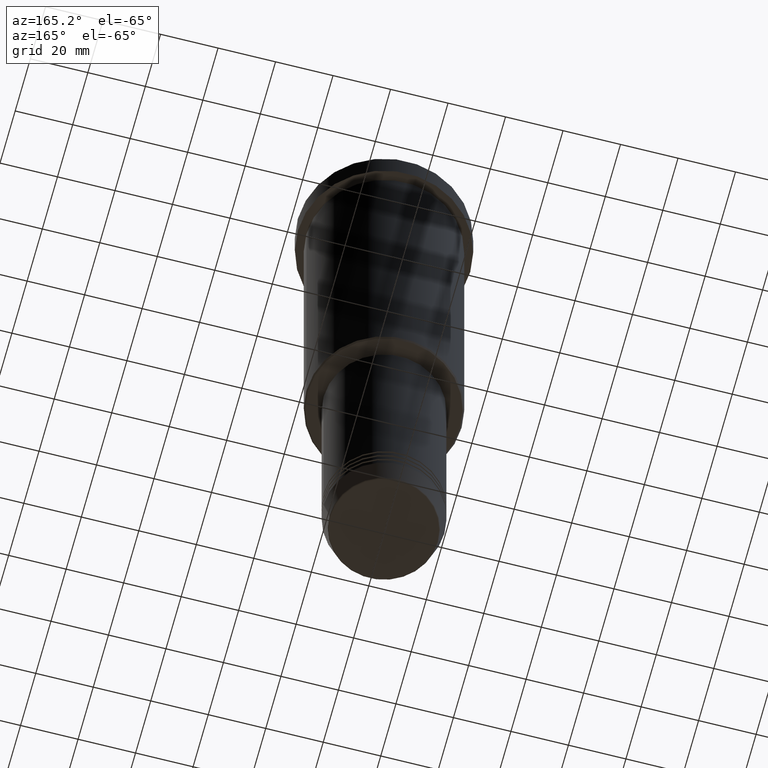
[diagram: clean part render]
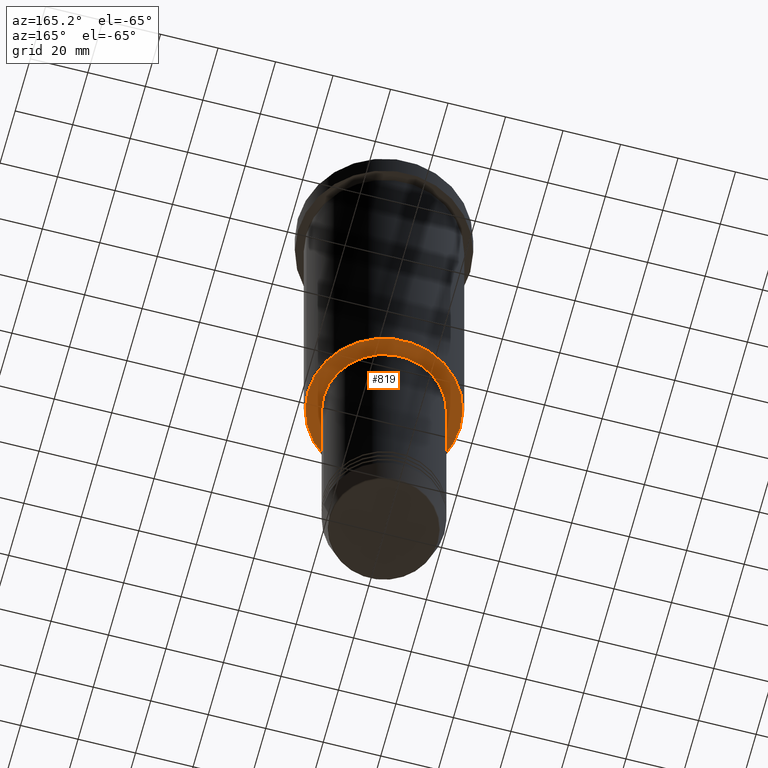
[diagram: same view with one face highlighted and labeled with its STEP entity id]
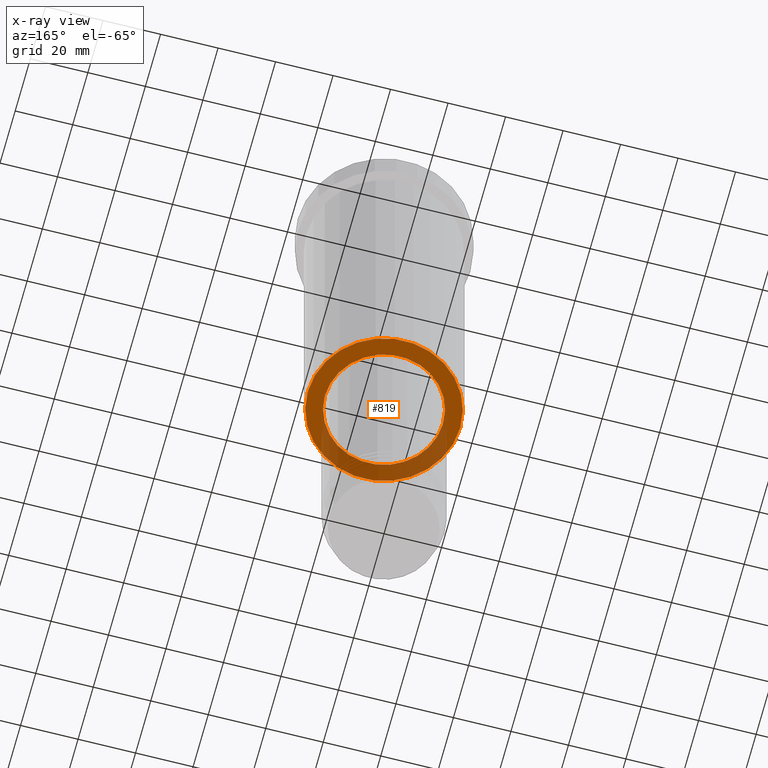
[diagram: x-ray of the same camera — body ghosted, the highlighted face saturated]
A machine part, auxiliary view. The second image highlights one B-rep face of the part: STEP entity #819.
The next image is the same camera in x-ray: the body ghosted, the highlighted face saturated — about 35% of this face is hidden behind the body in this view.
In plain terms, the highlighted planar face has unit normal (0, 0, -1).
Its self-contained STEP definition (entity closure, byte-faithful):
#2 = DIRECTION ( 'NONE',  ( 0.000000000000000000, 0.000000000000000000, -1.000000000000000000 ) ) ;
#9 = CARTESIAN_POINT ( 'NONE',  ( 0.000000000000000000, 0.000000000000000000, -136.0000000000000000 ) ) ;
#47 = VERTEX_POINT ( 'NONE', #62 ) ;
#62 = CARTESIAN_POINT ( 'NONE',  ( 20.50000000000000000, 0.000000000000000000, -136.0000000000000000 ) ) ;
#69 = DIRECTION ( 'NONE',  ( -0.000000000000000000, -0.000000000000000000, 1.000000000000000000 ) ) ;
#123 = EDGE_CURVE ( 'NONE', #47, #1094, #803, .T. ) ;
#173 = CARTESIAN_POINT ( 'NONE',  ( -20.50000000000000000, 2.510525938252074481E-15, -136.0000000000000000 ) ) ;
#178 = DIRECTION ( 'NONE',  ( -0.000000000000000000, -0.000000000000000000, 1.000000000000000000 ) ) ;
#188 = DIRECTION ( 'NONE',  ( 0.000000000000000000, 0.000000000000000000, -1.000000000000000000 ) ) ;
#190 = DIRECTION ( 'NONE',  ( 1.000000000000000000, 0.000000000000000000, 0.000000000000000000 ) ) ;
#197 = CARTESIAN_POINT ( 'NONE',  ( -26.49999999999996803, 3.275930187719167974E-15, -136.0000000000000000 ) ) ;
#257 = PLANE ( 'NONE',  #838 ) ;
#274 = ORIENTED_EDGE ( 'NONE', *, *, #123, .T. ) ;
#321 = CIRCLE ( 'NONE', #950, 26.49999999999996803 ) ;
#374 = DIRECTION ( 'NONE',  ( 0.000000000000000000, 0.000000000000000000, -1.000000000000000000 ) ) ;
#426 = EDGE_CURVE ( 'NONE', #1094, #47, #1178, .T. ) ;
#429 = VERTEX_POINT ( 'NONE', #1136 ) ;
#442 = CARTESIAN_POINT ( 'NONE',  ( 0.000000000000000000, 0.000000000000000000, -136.0000000000000000 ) ) ;
#455 = CARTESIAN_POINT ( 'NONE',  ( 0.000000000000000000, 27.00000000000000355, -136.0000000000000000 ) ) ;
#517 = ORIENTED_EDGE ( 'NONE', *, *, #1148, .T. ) ;
#561 = CARTESIAN_POINT ( 'NONE',  ( 0.000000000000000000, 0.000000000000000000, -136.0000000000000000 ) ) ;
#566 = EDGE_LOOP ( 'NONE', ( #274, #709 ) ) ;
#574 = EDGE_LOOP ( 'NONE', ( #619, #517 ) ) ;
#619 = ORIENTED_EDGE ( 'NONE', *, *, #704, .T. ) ;
#622 = AXIS2_PLACEMENT_3D ( 'NONE', #9, #188, #840 ) ;
#655 = DIRECTION ( 'NONE',  ( -1.000000000000000000, 0.000000000000000000, -0.000000000000000000 ) ) ;
#704 = EDGE_CURVE ( 'NONE', #429, #893, #321, .T. ) ;
#709 = ORIENTED_EDGE ( 'NONE', *, *, #426, .T. ) ;
#742 = CIRCLE ( 'NONE', #622, 26.49999999999996803 ) ;
#799 = AXIS2_PLACEMENT_3D ( 'NONE', #561, #178, #190 ) ;
#803 = CIRCLE ( 'NONE', #799, 20.50000000000000000 ) ;
#819 = ADVANCED_FACE ( 'NONE', ( #915, #841 ), #257, .T. ) ;
#838 = AXIS2_PLACEMENT_3D ( 'NONE', #455, #374, #655 ) ;
#840 = DIRECTION ( 'NONE',  ( -1.000000000000000000, 0.000000000000000000, 0.000000000000000000 ) ) ;
#841 = FACE_BOUND ( 'NONE', #566, .T. ) ;
#893 = VERTEX_POINT ( 'NONE', #197 ) ;
#905 = AXIS2_PLACEMENT_3D ( 'NONE', #442, #69, #1168 ) ;
#911 = CARTESIAN_POINT ( 'NONE',  ( 0.000000000000000000, 0.000000000000000000, -136.0000000000000000 ) ) ;
#915 = FACE_OUTER_BOUND ( 'NONE', #574, .T. ) ;
#950 = AXIS2_PLACEMENT_3D ( 'NONE', #911, #2, #990 ) ;
#990 = DIRECTION ( 'NONE',  ( -1.000000000000000000, 0.000000000000000000, 0.000000000000000000 ) ) ;
#1094 = VERTEX_POINT ( 'NONE', #173 ) ;
#1136 = CARTESIAN_POINT ( 'NONE',  ( 26.49999999999996803, 0.000000000000000000, -136.0000000000000000 ) ) ;
#1148 = EDGE_CURVE ( 'NONE', #893, #429, #742, .T. ) ;
#1168 = DIRECTION ( 'NONE',  ( 1.000000000000000000, 0.000000000000000000, 0.000000000000000000 ) ) ;
#1178 = CIRCLE ( 'NONE', #905, 20.50000000000000000 ) ;